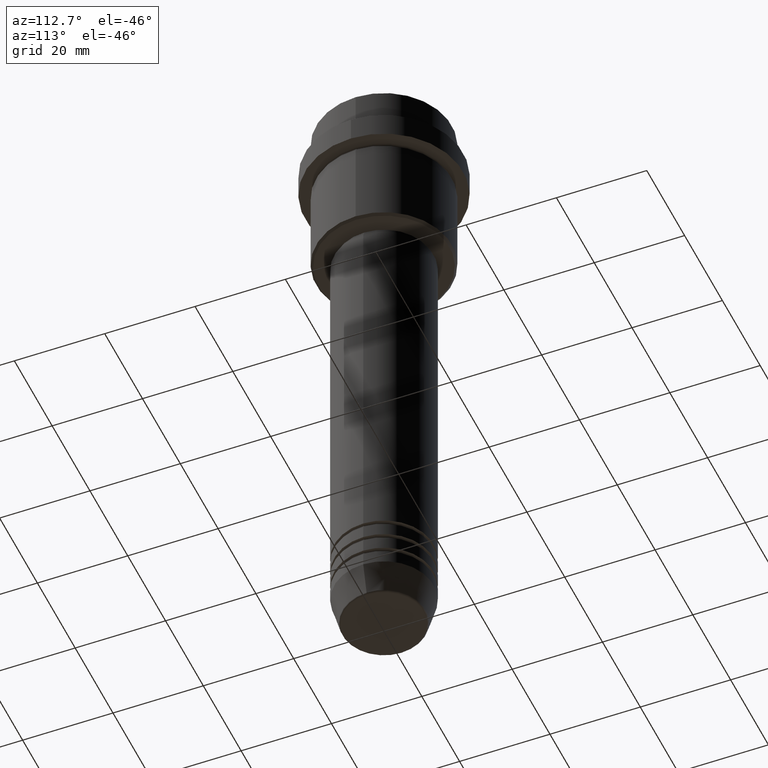
[diagram: clean part render]
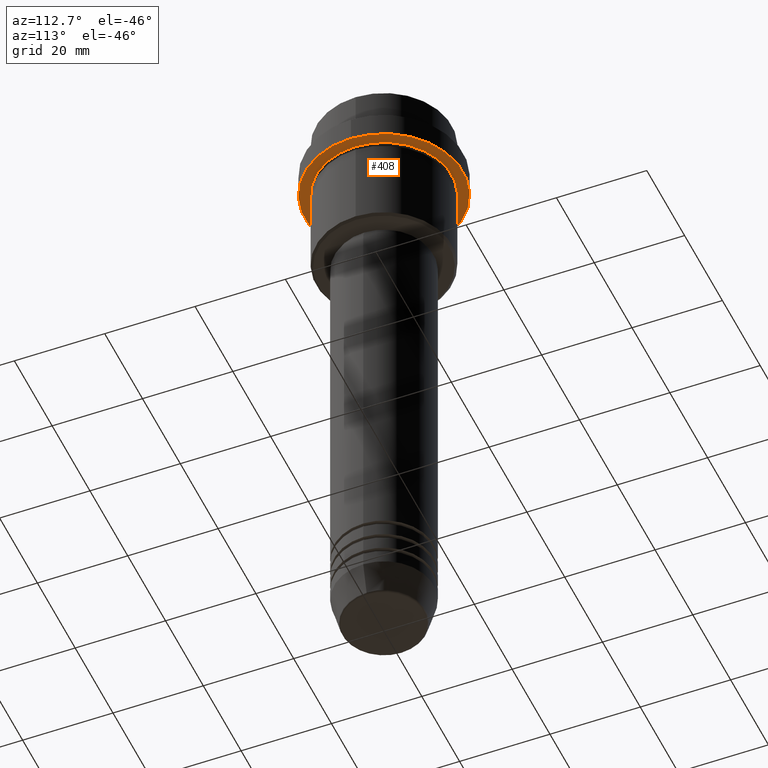
[diagram: same view with one face highlighted and labeled with its STEP entity id]
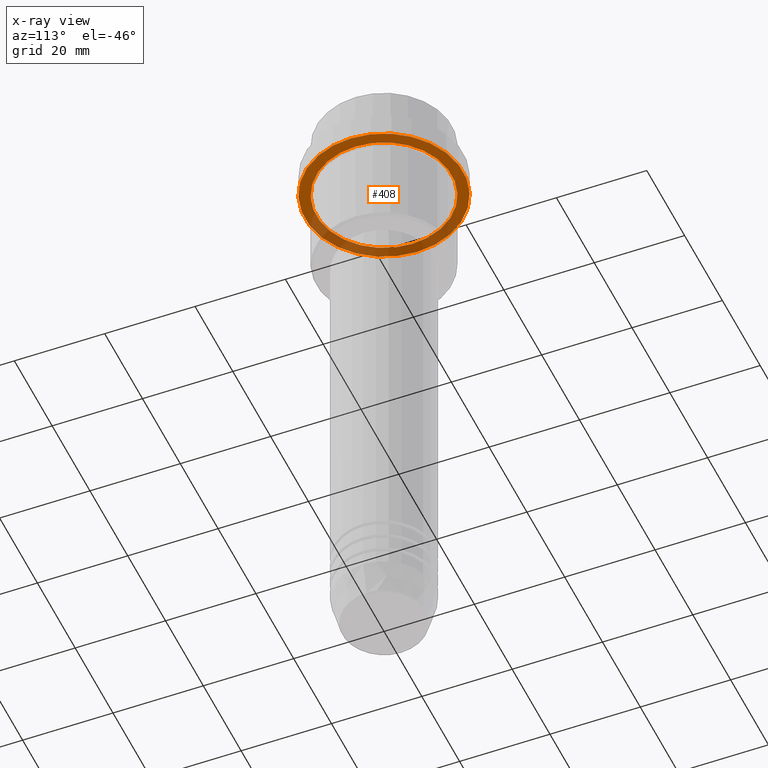
[diagram: x-ray of the same camera — body ghosted, the highlighted face saturated]
A machine part, auxiliary view. The second image highlights one B-rep face of the part: STEP entity #408.
The next image is the same camera in x-ray: the body ghosted, the highlighted face saturated — about 36% of this face is hidden behind the body in this view.
In plain terms, the highlighted planar face has unit normal (0, 0, -1).
Its self-contained STEP definition (entity closure, byte-faithful):
#10 = EDGE_CURVE ( 'NONE', #740, #1344, #250, .T. ) ;
#83 = CARTESIAN_POINT ( 'NONE',  ( -14.99999999999999467, 0.000000000000000000, -15.00000000000000000 ) ) ;
#92 = AXIS2_PLACEMENT_3D ( 'NONE', #1265, #169, #380 ) ;
#169 = DIRECTION ( 'NONE',  ( -0.000000000000000000, -0.000000000000000000, 1.000000000000000000 ) ) ;
#176 = CARTESIAN_POINT ( 'NONE',  ( 14.99999999999999467, 1.836970198721029194E-15, -15.00000000000000000 ) ) ;
#189 = CARTESIAN_POINT ( 'NONE',  ( -17.50000000000000000, 2.143131898507868248E-15, -15.00000000000000000 ) ) ;
#195 = DIRECTION ( 'NONE',  ( -0.000000000000000000, -0.000000000000000000, 1.000000000000000000 ) ) ;
#207 = DIRECTION ( 'NONE',  ( -1.000000000000000000, 0.000000000000000000, 0.000000000000000000 ) ) ;
#219 = DIRECTION ( 'NONE',  ( -1.000000000000000000, 0.000000000000000000, -0.000000000000000000 ) ) ;
#223 = DIRECTION ( 'NONE',  ( 0.000000000000000000, 0.000000000000000000, -1.000000000000000000 ) ) ;
#250 = CIRCLE ( 'NONE', #565, 14.99999999999999467 ) ;
#314 = EDGE_CURVE ( 'NONE', #1355, #877, #1099, .T. ) ;
#338 = CARTESIAN_POINT ( 'NONE',  ( 17.50000000000000000, 0.000000000000000000, -15.00000000000000000 ) ) ;
#380 = DIRECTION ( 'NONE',  ( 1.000000000000000000, 0.000000000000000000, 0.000000000000000000 ) ) ;
#408 = ADVANCED_FACE ( 'NONE', ( #1313, #439 ), #644, .T. ) ;
#439 = FACE_OUTER_BOUND ( 'NONE', #1186, .T. ) ;
#480 = AXIS2_PLACEMENT_3D ( 'NONE', #1179, #501, #1368 ) ;
#501 = DIRECTION ( 'NONE',  ( -0.000000000000000000, -0.000000000000000000, 1.000000000000000000 ) ) ;
#526 = DIRECTION ( 'NONE',  ( -0.000000000000000000, -0.000000000000000000, 1.000000000000000000 ) ) ;
#565 = AXIS2_PLACEMENT_3D ( 'NONE', #663, #526, #1207 ) ;
#583 = ORIENTED_EDGE ( 'NONE', *, *, #314, .F. ) ;
#588 = CIRCLE ( 'NONE', #771, 14.99999999999999467 ) ;
#644 = PLANE ( 'NONE',  #1397 ) ;
#662 = CARTESIAN_POINT ( 'NONE',  ( 0.000000000000000000, 17.50000000000000000, -15.00000000000000000 ) ) ;
#663 = CARTESIAN_POINT ( 'NONE',  ( 0.000000000000000000, 0.000000000000000000, -15.00000000000000000 ) ) ;
#704 = CIRCLE ( 'NONE', #92, 17.50000000000000000 ) ;
#740 = VERTEX_POINT ( 'NONE', #176 ) ;
#742 = ORIENTED_EDGE ( 'NONE', *, *, #1172, .F. ) ;
#761 = ORIENTED_EDGE ( 'NONE', *, *, #10, .T. ) ;
#771 = AXIS2_PLACEMENT_3D ( 'NONE', #1182, #195, #207 ) ;
#780 = EDGE_LOOP ( 'NONE', ( #1296, #761 ) ) ;
#877 = VERTEX_POINT ( 'NONE', #338 ) ;
#1099 = CIRCLE ( 'NONE', #480, 17.50000000000000000 ) ;
#1172 = EDGE_CURVE ( 'NONE', #877, #1355, #704, .T. ) ;
#1179 = CARTESIAN_POINT ( 'NONE',  ( 0.000000000000000000, 0.000000000000000000, -15.00000000000000000 ) ) ;
#1182 = CARTESIAN_POINT ( 'NONE',  ( 0.000000000000000000, 0.000000000000000000, -15.00000000000000000 ) ) ;
#1186 = EDGE_LOOP ( 'NONE', ( #742, #583 ) ) ;
#1207 = DIRECTION ( 'NONE',  ( -1.000000000000000000, 0.000000000000000000, 0.000000000000000000 ) ) ;
#1265 = CARTESIAN_POINT ( 'NONE',  ( 0.000000000000000000, 0.000000000000000000, -15.00000000000000000 ) ) ;
#1296 = ORIENTED_EDGE ( 'NONE', *, *, #1364, .T. ) ;
#1313 = FACE_BOUND ( 'NONE', #780, .T. ) ;
#1344 = VERTEX_POINT ( 'NONE', #83 ) ;
#1355 = VERTEX_POINT ( 'NONE', #189 ) ;
#1364 = EDGE_CURVE ( 'NONE', #1344, #740, #588, .T. ) ;
#1368 = DIRECTION ( 'NONE',  ( 1.000000000000000000, 0.000000000000000000, 0.000000000000000000 ) ) ;
#1397 = AXIS2_PLACEMENT_3D ( 'NONE', #662, #223, #219 ) ;